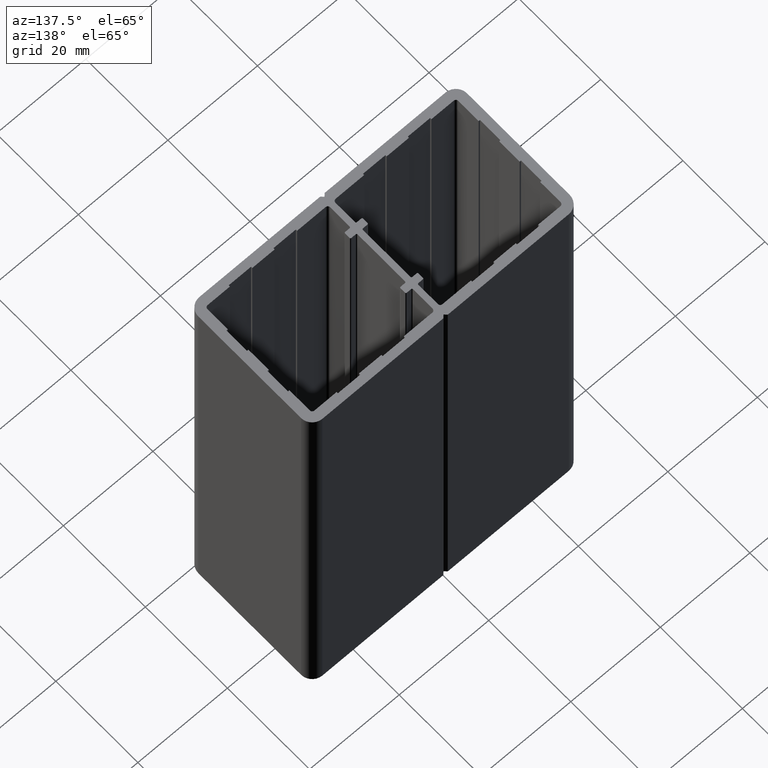
[diagram: clean part render]
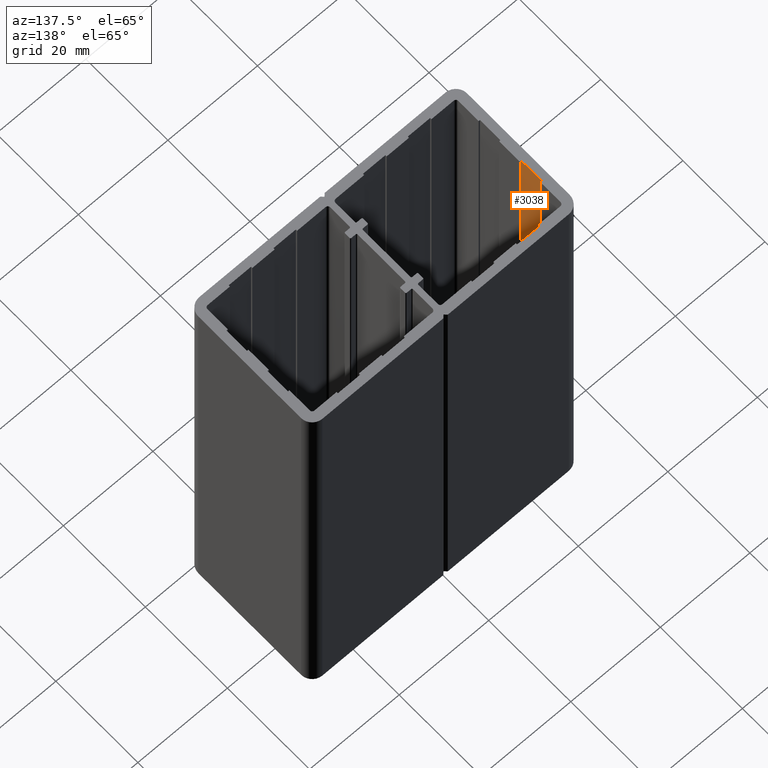
[diagram: same view with one face highlighted and labeled with its STEP entity id]
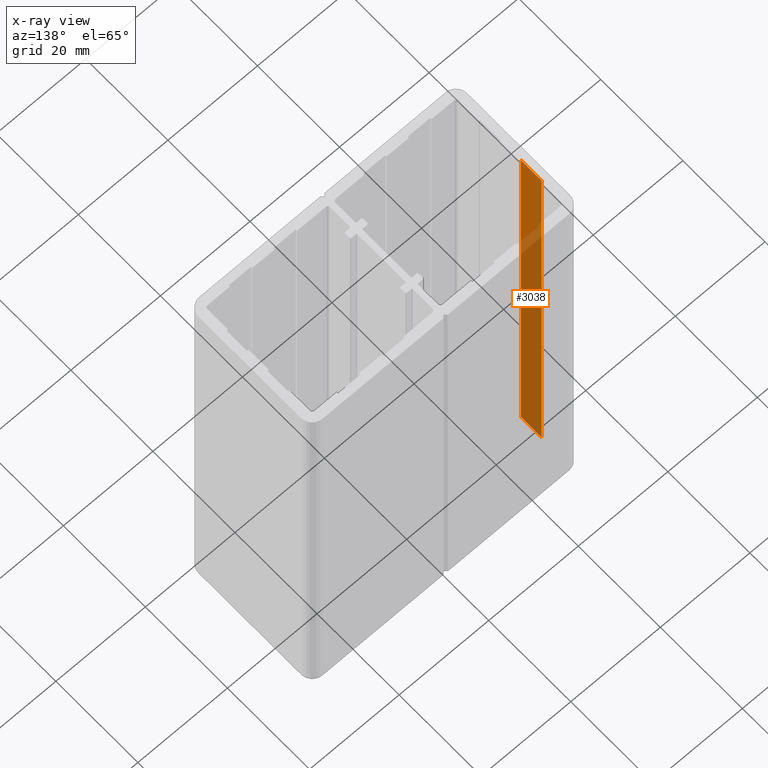
[diagram: x-ray of the same camera — body ghosted, the highlighted face saturated]
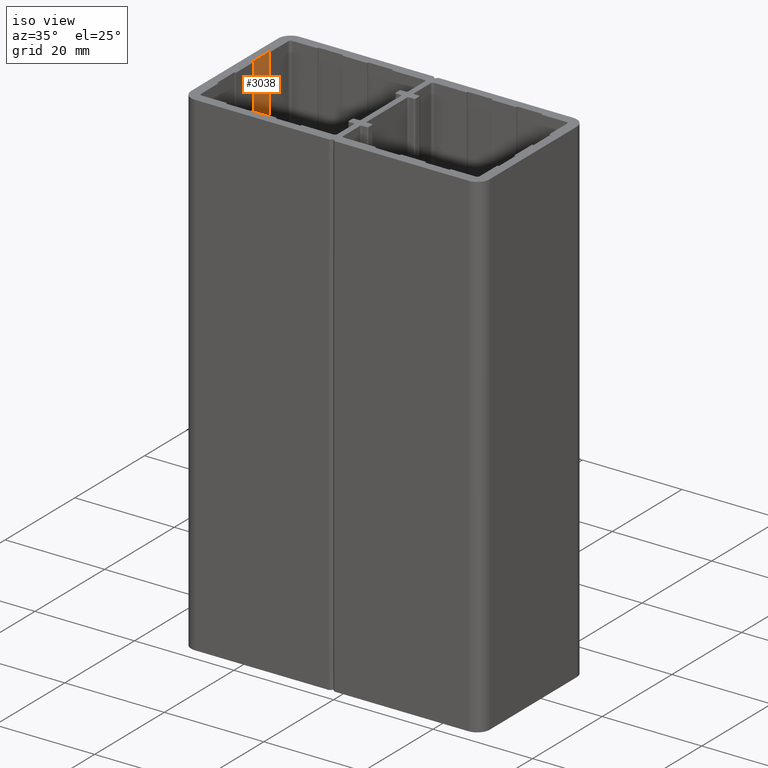
[diagram: same view with one face highlighted and labeled with its STEP entity id]
A machine part, auxiliary view. The second image highlights one B-rep face of the part: STEP entity #3038.
The next image is the same camera in x-ray: the body ghosted, the highlighted face saturated — about 76% of this face is hidden behind the body in this view.
A second angle (iso view) of the same face is appended — the face is thin or edge-on in the first view.
In plain terms, the highlighted planar face has unit normal (1, 0, 0).
Its self-contained STEP definition (entity closure, byte-faithful):
#2982=CARTESIAN_POINT('',(-28.299999999986767,16.999999999982606,0.0));
#2983=VERTEX_POINT('',#2982);
#2990=CARTESIAN_POINT('',(-28.299999999986767,16.999999999982606,100.0));
#2991=VERTEX_POINT('',#2990);
#2992=CARTESIAN_POINT('',(-28.299999999986767,16.999999999982606,0.0));
#2993=DIRECTION('',(0.0,0.0,1.0));
#2994=VECTOR('',#2993,100.0);
#2995=LINE('',#2992,#2994);
#2996=EDGE_CURVE('',#2983,#2991,#2995,.T.);
#3008=CARTESIAN_POINT('',(-28.299999999986767,16.999999999982606,0.0));
#3009=DIRECTION('',(1.0,0.0,0.0));
#3010=DIRECTION('',(0.0,1.0,0.0));
#3011=AXIS2_PLACEMENT_3D('',#3008,#3009,#3010);
#3012=PLANE('',#3011);
#3013=CARTESIAN_POINT('',(-28.299999999986767,21.999999999977717,0.0));
#3014=VERTEX_POINT('',#3013);
#3015=CARTESIAN_POINT('',(-28.299999999986767,16.999999999982606,0.0));
#3016=DIRECTION('',(0.0,1.0,0.0));
#3017=VECTOR('',#3016,4.999999999995112);
#3018=LINE('',#3015,#3017);
#3019=EDGE_CURVE('',#2983,#3014,#3018,.T.);
#3020=ORIENTED_EDGE('',*,*,#3019,.T.);
#3021=CARTESIAN_POINT('',(-28.299999999986767,21.999999999977717,100.0));
#3022=VERTEX_POINT('',#3021);
#3023=CARTESIAN_POINT('',(-28.299999999986767,21.999999999977717,0.0));
#3024=DIRECTION('',(0.0,0.0,1.0));
#3025=VECTOR('',#3024,100.0);
#3026=LINE('',#3023,#3025);
#3027=EDGE_CURVE('',#3014,#3022,#3026,.T.);
#3028=ORIENTED_EDGE('',*,*,#3027,.T.);
#3029=CARTESIAN_POINT('',(-28.299999999986767,16.999999999982606,100.0));
#3030=DIRECTION('',(0.0,1.0,0.0));
#3031=VECTOR('',#3030,4.999999999995112);
#3032=LINE('',#3029,#3031);
#3033=EDGE_CURVE('',#2991,#3022,#3032,.T.);
#3034=ORIENTED_EDGE('',*,*,#3033,.F.);
#3035=ORIENTED_EDGE('',*,*,#2996,.F.);
#3036=EDGE_LOOP('',(#3020,#3028,#3034,#3035));
#3037=FACE_OUTER_BOUND('',#3036,.T.);
#3038=ADVANCED_FACE('',(#3037),#3012,.T.);